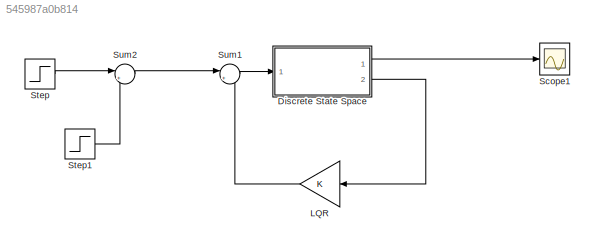
MODEL slx_545987a0b814
KIND model
CONFIG AbsTol = auto
CONFIG FixedStep = auto
CONFIG MaxStep = auto
CONFIG MinStep = auto
CONFIG RelTol = 1e-3
CONFIG SampleTimeConstraint = Unconstrained
CONFIG Solver = ode45
CONFIG SolverMode = Auto
CONFIG SolverName = ode45
CONFIG StartTime = 0.0
CONFIG StopTime = 10.0
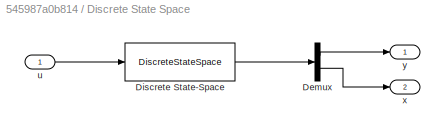
BLOCK [SubSystem] Discrete State Space 
  Ports = [1, 2]
  RequestExecContextInheritance = off
BLOCK [Demux] Discrete State Space /Demux
  DisplayOption = bar
  Outputs = [1 length(A)]
  Ports = [1, 2]
BLOCK [DiscreteStateSpace] Discrete State Space /Discrete State-Space
  A = A
  B = B
  C = [C;eye(4)]
  D = [0;0;0;0;0]
  SampleTime = 0.02
BLOCK [Inport] Discrete State Space /u
  IconDisplay = Port number
BLOCK [Outport] Discrete State Space /x
  IconDisplay = Port number
  Port = 2
BLOCK [Outport] Discrete State Space /y
  IconDisplay = Port number
BLOCK [Gain] LQR
  Gain = K
  Multiplication = Matrix(K*u)
  OutDataTypeStr = Inherit: Inherit via internal rule
  ParamDataTypeStr = Inherit: Inherit via internal rule
  SaturateOnIntegerOverflow = off
BLOCK [Scope] Scope1
  Floating = off
  NumInputPorts = 1
  Ports = [1]
  SaveName = ScopeData1
BLOCK [Step] Step
  SampleTime = 0
  Time = 0
BLOCK [Step] Step1
  SampleTime = 0
BLOCK [Sum] Sum1
  IconShape = round
  InputSameDT = off
  Inputs = |+-
  OutDataTypeStr = Inherit: Inherit via internal rule
  Ports = [2, 1]
  SaturateOnIntegerOverflow = off
BLOCK [Sum] Sum2
  IconShape = round
  InputSameDT = off
  Inputs = |+-
  OutDataTypeStr = Inherit: Inherit via internal rule
  Ports = [2, 1]
  SaturateOnIntegerOverflow = off
LINE Discrete State Space /Demux:1 -> Discrete State Space /y:1
LINE Discrete State Space /Demux:2 -> Discrete State Space /x:1
LINE Discrete State Space /Discrete State-Space:1 -> Discrete State Space /Demux:1
LINE Discrete State Space /u:1 -> Discrete State Space /Discrete State-Space:1
LINE Discrete State Space :1 -> Scope1:1
LINE Discrete State Space :2 -> LQR:1
LINE LQR:1 -> Sum1:2
LINE Step1:1 -> Sum2:2
LINE Step:1 -> Sum2:1
LINE Sum1:1 -> Discrete State Space :1
LINE Sum2:1 -> Sum1:1
